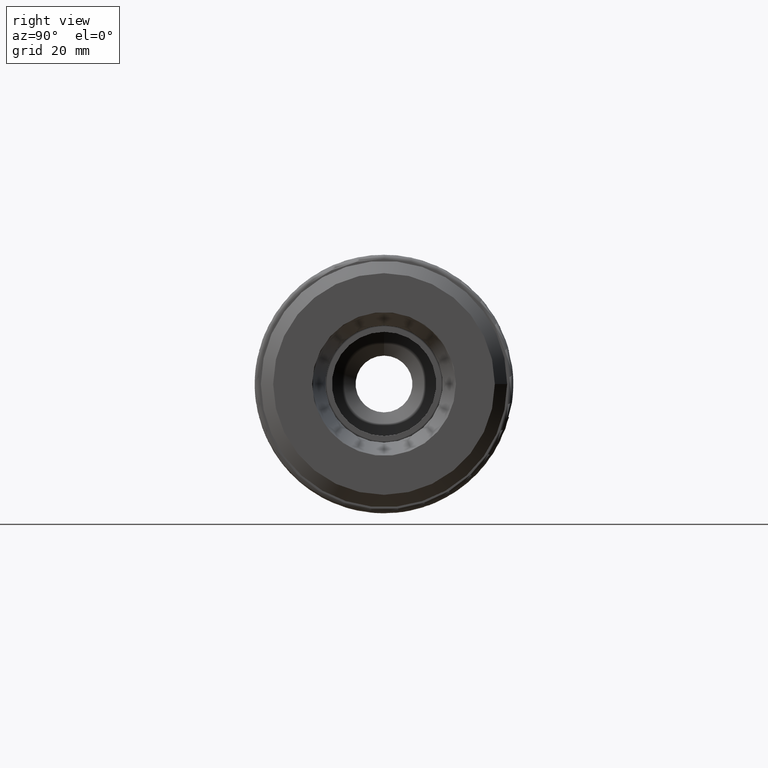
[diagram: clean part render]
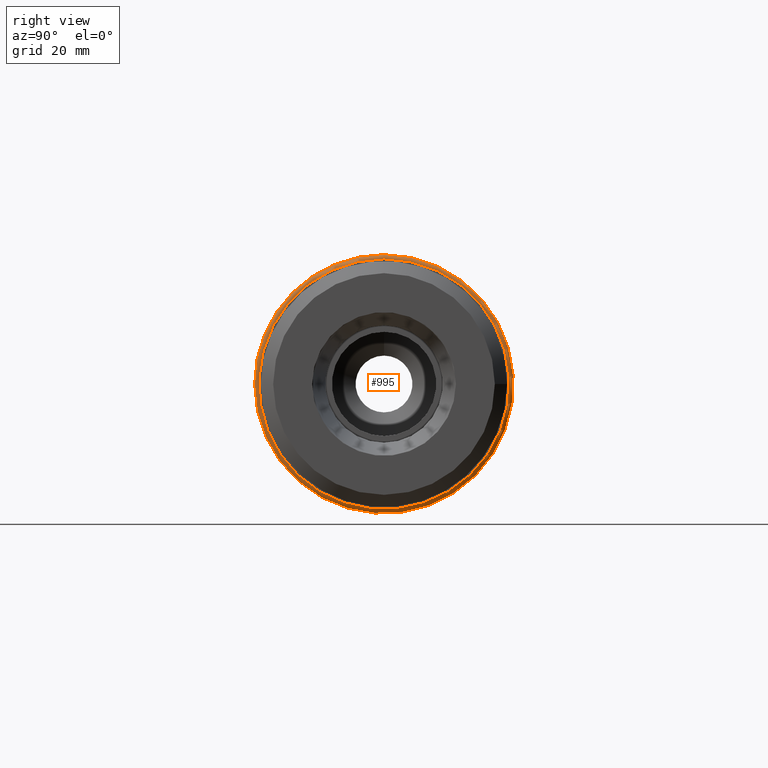
[diagram: same view with one face highlighted and labeled with its STEP entity id]
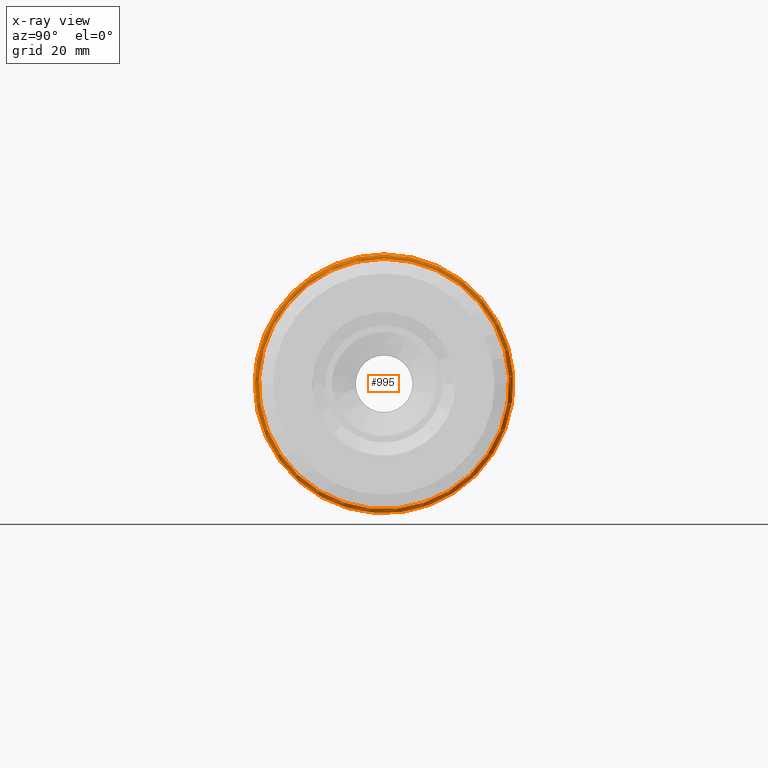
[diagram: x-ray of the same camera — body ghosted, the highlighted face saturated]
A machine part, right view. The second image highlights one B-rep face of the part: STEP entity #995.
The next image is the same camera in x-ray: the body ghosted, the highlighted face saturated — about 0% of this face is hidden behind the body in this view.
In plain terms, the highlighted toroidal blend (fillet) surface has major radius 30.5 mm and minor (blend) radius 1 mm.
Its self-contained STEP definition (entity closure, byte-faithful):
#59=TOROIDAL_SURFACE('',#1183,30.5,1.00000000000001);
#156=FACE_OUTER_BOUND('',#222,.T.);
#222=EDGE_LOOP('',(#879,#880,#881,#882,#883));
#356=CIRCLE('',#1101,30.5);
#370=CIRCLE('',#1130,31.5);
#373=CIRCLE('',#1133,31.5);
#399=CIRCLE('',#1184,1.00000000000001);
#426=VERTEX_POINT('',#1573);
#462=VERTEX_POINT('',#1722);
#463=VERTEX_POINT('',#1723);
#523=EDGE_CURVE('',#426,#426,#356,.T.);
#569=EDGE_CURVE('',#462,#463,#370,.T.);
#574=EDGE_CURVE('',#463,#462,#373,.T.);
#626=EDGE_CURVE('',#426,#463,#399,.T.);
#879=ORIENTED_EDGE('',*,*,#523,.F.);
#880=ORIENTED_EDGE('',*,*,#626,.T.);
#881=ORIENTED_EDGE('',*,*,#574,.T.);
#882=ORIENTED_EDGE('',*,*,#569,.T.);
#883=ORIENTED_EDGE('',*,*,#626,.F.);
#995=ADVANCED_FACE('',(#156),#59,.T.);
#1101=AXIS2_PLACEMENT_3D('',#1574,#1258,#1259);
#1130=AXIS2_PLACEMENT_3D('',#1724,#1338,#1339);
#1133=AXIS2_PLACEMENT_3D('',#1740,#1345,#1346);
#1183=AXIS2_PLACEMENT_3D('',#1886,#1463,#1464);
#1184=AXIS2_PLACEMENT_3D('',#1887,#1465,#1466);
#1258=DIRECTION('center_axis',(1.,0.,0.));
#1259=DIRECTION('ref_axis',(0.,0.,-1.));
#1338=DIRECTION('center_axis',(1.,0.,0.));
#1339=DIRECTION('ref_axis',(0.,0.,-1.));
#1345=DIRECTION('center_axis',(1.,0.,0.));
#1346=DIRECTION('ref_axis',(0.,0.,-1.));
#1463=DIRECTION('center_axis',(1.,0.,0.));
#1464=DIRECTION('ref_axis',(0.,0.,-1.));
#1465=DIRECTION('center_axis',(0.,-1.,-1.22464679914735E-16));
#1466=DIRECTION('ref_axis',(0.,-1.22464679914735E-16,1.));
#1573=CARTESIAN_POINT('',(27.,-3.73517273739943E-15,30.5));
#1574=CARTESIAN_POINT('Origin',(27.,0.,0.));
#1722=CARTESIAN_POINT('',(26.,-31.5,-3.85763741731416E-15));
#1723=CARTESIAN_POINT('',(26.,-3.85763741731416E-15,31.5));
#1724=CARTESIAN_POINT('Origin',(26.,0.,0.));
#1740=CARTESIAN_POINT('Origin',(26.,0.,0.));
#1886=CARTESIAN_POINT('Origin',(26.,0.,0.));
#1887=CARTESIAN_POINT('Origin',(26.,-3.73517273739943E-15,30.5));